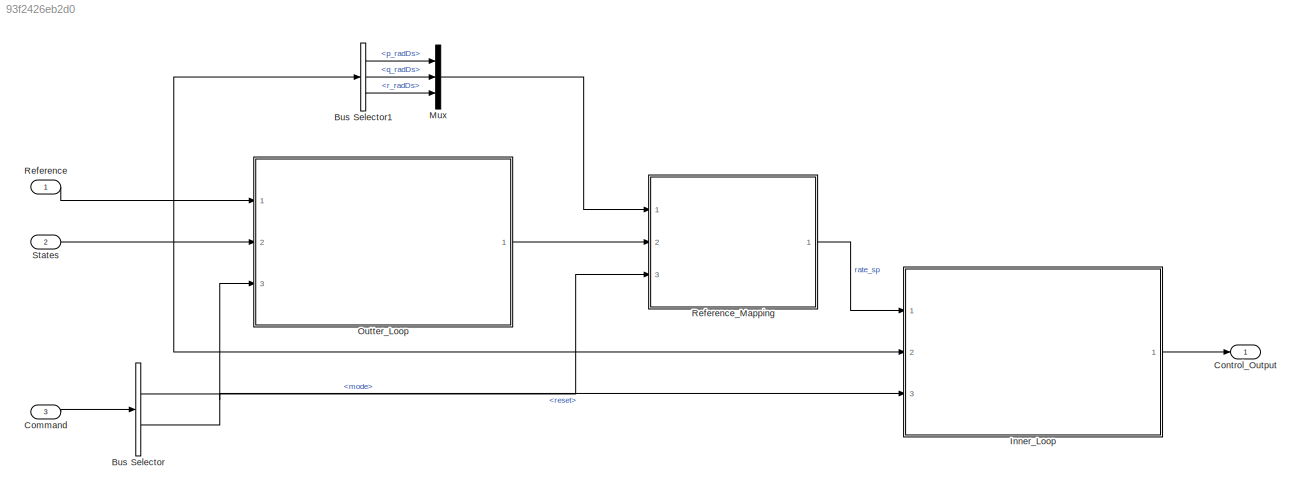
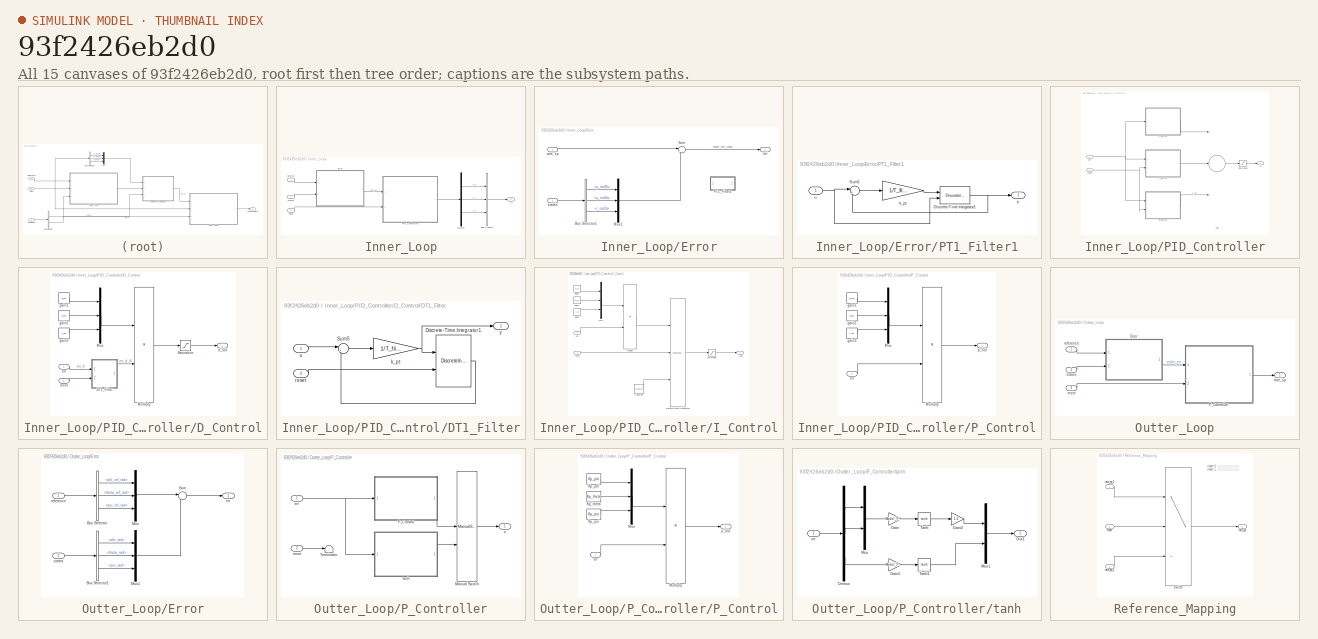
[diagram: thumbnail index - all 15 canvases of the model, root first then tree order]
MODEL slx_93f2426eb2d0
KIND model
CONFIG AbsTol = auto
CONFIG EnableMultiTasking = off
CONFIG FixedStep = auto
CONFIG MaxStep = auto
CONFIG MinStep = auto
CONFIG RelTol = 1e-3
CONFIG SampleTimeConstraint = Unconstrained
CONFIG Solver = VariableStepAuto
CONFIG SolverName = VariableStepAuto
CONFIG StartTime = 0.0
CONFIG StopTime = 10.0
BLOCK [BusSelector] Bus Selector
  OutputAsBus = off
  OutputSignals = mode,reset
  Ports = [1, 2]
BLOCK [BusSelector] Bus Selector1
  OutputAsBus = off
  OutputSignals = p_radDs,q_radDs,r_radDs
  Ports = [1, 3]
BLOCK [Inport] Command
  IconDisplay = Port number
  OutDataTypeStr = Bus: Command
  Port = 3
BLOCK [Outport] Control_Output
  IconDisplay = Port number
  OutDataTypeStr = Bus: Control_Output
BLOCK [SubSystem] Inner_Loop
  Ports = [3, 1]
  RequestExecContextInheritance = off
BLOCK [BusCreator] Inner_Loop/Bus Creator
  DisplayOption = bar
  InheritFromInputs = on
  Inputs = 3
  Ports = [3, 1]
BLOCK [Demux] Inner_Loop/Demux
  DisplayOption = bar
  Outputs = 3
  Ports = [1, 3]
BLOCK [SubSystem] Inner_Loop/Error
  Ports = [2, 1]
  RequestExecContextInheritance = off
BLOCK [BusSelector] Inner_Loop/Error/Bus Selector1
  OutputAsBus = off
  OutputSignals = p_radDs,q_radDs,r_radDs
  Ports = [1, 3]
BLOCK [Mux] Inner_Loop/Error/Mux1
  DisplayOption = bar
  Inputs = 3
  Ports = [3, 1]
BLOCK [SubSystem] Inner_Loop/Error/PT1_Filter1
  Commented = on
  Ports = [1, 1]
  RequestExecContextInheritance = off
BLOCK [DiscreteIntegrator] Inner_Loop/Error/PT1_Filter1/Discrete-Time Integrator1
  ICPrevOutput = DiscIntNeverNeededParam
  ICPrevScaledInput = DiscIntNeverNeededParam
  InitialConditionSource = external
  OutDataTypeStr = single
  Ports = [2, 1]
  SampleTime = -1
BLOCK [Sum] Inner_Loop/Error/PT1_Filter1/Sum5
  IconShape = round
  InputSameDT = off
  Inputs = |+-
  OutDataTypeStr = Inherit: Inherit via internal rule
  Ports = [2, 1]
  SaturateOnIntegerOverflow = off
BLOCK [Gain] Inner_Loop/Error/PT1_Filter1/k_pt
  Gain = 1/T_filter
  OutDataTypeStr = Inherit: Inherit via internal rule
  ParamDataTypeStr = Inherit: Inherit via internal rule
  SaturateOnIntegerOverflow = off
BLOCK [Inport] Inner_Loop/Error/PT1_Filter1/u
  IconDisplay = Port number
BLOCK [Outport] Inner_Loop/Error/PT1_Filter1/y
  IconDisplay = Port number
BLOCK [Sum] Inner_Loop/Error/Sum
  IconShape = round
  InputSameDT = off
  Inputs = |+-
  OutDataTypeStr = Inherit: Inherit via internal rule
  Ports = [2, 1]
  SaturateOnIntegerOverflow = off
BLOCK [Outport] Inner_Loop/Error/err
  IconDisplay = Port number
BLOCK [Inport] Inner_Loop/Error/rate_sp
  IconDisplay = Port number
BLOCK [Inport] Inner_Loop/Error/states
  IconDisplay = Port number
  Port = 2
BLOCK [SubSystem] Inner_Loop/PID_Controller
  Ports = [2, 1]
  RequestExecContextInheritance = off
BLOCK [Sum] Inner_Loop/PID_Controller/Add
  AccumDataTypeStr = Inherit: Same as first input
  InputSameDT = off
  Inputs = +++
  OutDataTypeStr = Inherit: Inherit via internal rule
  Ports = [3, 1]
  SaturateOnIntegerOverflow = off
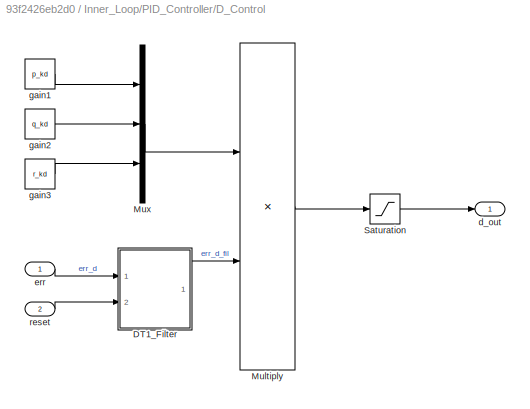
BLOCK [SubSystem] Inner_Loop/PID_Controller/D_Control
  Ports = [2, 1]
  RequestExecContextInheritance = off
BLOCK [SubSystem] Inner_Loop/PID_Controller/D_Control/DT1_Filter
  Ports = [2, 1]
  RequestExecContextInheritance = off
BLOCK [DiscreteIntegrator] Inner_Loop/PID_Controller/D_Control/DT1_Filter/Discrete-Time Integrator1
  ExternalReset = level
  ICPrevOutput = DiscIntNeverNeededParam
  ICPrevScaledInput = DiscIntNeverNeededParam
  Ports = [2, 1]
  SampleTime = -1
BLOCK [Sum] Inner_Loop/PID_Controller/D_Control/DT1_Filter/Sum5
  IconShape = round
  InputSameDT = off
  Inputs = |+-
  OutDataTypeStr = Inherit: Inherit via internal rule
  Ports = [2, 1]
  SaturateOnIntegerOverflow = off
BLOCK [Gain] Inner_Loop/PID_Controller/D_Control/DT1_Filter/k_pt
  Gain = 1/T_filter
  ParamDataTypeStr = Inherit: Inherit via internal rule
  SaturateOnIntegerOverflow = off
BLOCK [Inport] Inner_Loop/PID_Controller/D_Control/DT1_Filter/reset
  IconDisplay = Port number
  Port = 2
BLOCK [Inport] Inner_Loop/PID_Controller/D_Control/DT1_Filter/u
  IconDisplay = Port number
BLOCK [Outport] Inner_Loop/PID_Controller/D_Control/DT1_Filter/y
  IconDisplay = Port number
BLOCK [Product] Inner_Loop/PID_Controller/D_Control/Multiply
  InputSameDT = off
  Ports = [2, 1]
  RndMeth = Floor
  SaturateOnIntegerOverflow = off
BLOCK [Mux] Inner_Loop/PID_Controller/D_Control/Mux
  DisplayOption = bar
  Inputs = 3
  Ports = [3, 1]
BLOCK [Saturate] Inner_Loop/PID_Controller/D_Control/Saturation
  InputPortMap = u0
  LowerLimit = min_d
  Ports = [1, 1]
  UpperLimit = max_d
BLOCK [Outport] Inner_Loop/PID_Controller/D_Control/d_out
  IconDisplay = Port number
BLOCK [Inport] Inner_Loop/PID_Controller/D_Control/err
  IconDisplay = Port number
BLOCK [Constant] Inner_Loop/PID_Controller/D_Control/gain1
  OutDataTypeStr = single
  Value = p_kd
BLOCK [Constant] Inner_Loop/PID_Controller/D_Control/gain2
  OutDataTypeStr = single
  Value = q_kd
BLOCK [Constant] Inner_Loop/PID_Controller/D_Control/gain3
  OutDataTypeStr = single
  Value = r_kd
BLOCK [Inport] Inner_Loop/PID_Controller/D_Control/reset
  IconDisplay = Port number
  Port = 2
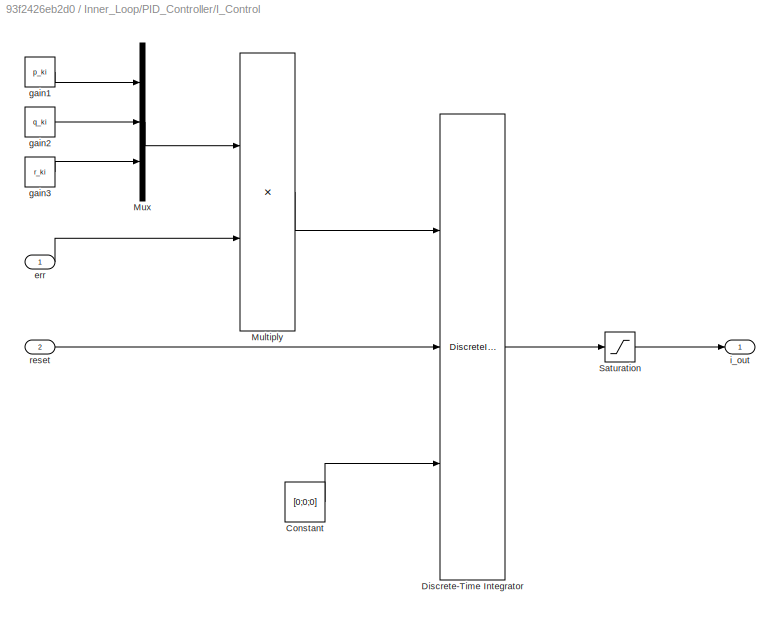
BLOCK [SubSystem] Inner_Loop/PID_Controller/I_Control
  Ports = [2, 1]
  RequestExecContextInheritance = off
BLOCK [Constant] Inner_Loop/PID_Controller/I_Control/Constant
  OutDataTypeStr = single
  Value = [0;0;0]
BLOCK [DiscreteIntegrator] Inner_Loop/PID_Controller/I_Control/Discrete-Time Integrator
  ExternalReset = level
  ICPrevOutput = DiscIntNeverNeededParam
  ICPrevScaledInput = DiscIntNeverNeededParam
  InitialConditionSetting = Auto
  InitialConditionSource = external
  Ports = [3, 1]
  SampleTime = -1
BLOCK [Product] Inner_Loop/PID_Controller/I_Control/Multiply
  InputSameDT = off
  Ports = [2, 1]
  RndMeth = Floor
  SaturateOnIntegerOverflow = off
BLOCK [Mux] Inner_Loop/PID_Controller/I_Control/Mux
  DisplayOption = bar
  Inputs = 3
  Ports = [3, 1]
BLOCK [Saturate] Inner_Loop/PID_Controller/I_Control/Saturation
  InputPortMap = u0
  LowerLimit = min_i
  Ports = [1, 1]
  UpperLimit = max_i
BLOCK [Inport] Inner_Loop/PID_Controller/I_Control/err
  IconDisplay = Port number
BLOCK [Constant] Inner_Loop/PID_Controller/I_Control/gain1
  OutDataTypeStr = single
  Value = p_ki
BLOCK [Constant] Inner_Loop/PID_Controller/I_Control/gain2
  OutDataTypeStr = single
  Value = q_ki
BLOCK [Constant] Inner_Loop/PID_Controller/I_Control/gain3
  OutDataTypeStr = single
  Value = r_ki
BLOCK [Outport] Inner_Loop/PID_Controller/I_Control/i_out
  IconDisplay = Port number
BLOCK [Inport] Inner_Loop/PID_Controller/I_Control/reset
  IconDisplay = Port number
  Port = 2
BLOCK [SubSystem] Inner_Loop/PID_Controller/P_Control
  Ports = [1, 1]
  RequestExecContextInheritance = off
BLOCK [Product] Inner_Loop/PID_Controller/P_Control/Multiply
  InputSameDT = off
  Ports = [2, 1]
  RndMeth = Floor
  SaturateOnIntegerOverflow = off
BLOCK [Mux] Inner_Loop/PID_Controller/P_Control/Mux
  DisplayOption = bar
  Inputs = 3
  Ports = [3, 1]
BLOCK [Inport] Inner_Loop/PID_Controller/P_Control/err
  IconDisplay = Port number
BLOCK [Constant] Inner_Loop/PID_Controller/P_Control/gain1
  OutDataTypeStr = single
  Value = p_kp
BLOCK [Constant] Inner_Loop/PID_Controller/P_Control/gain2
  OutDataTypeStr = single
  Value = q_kp
BLOCK [Constant] Inner_Loop/PID_Controller/P_Control/gain3
  OutDataTypeStr = single
  Value = r_kp
BLOCK [Outport] Inner_Loop/PID_Controller/P_Control/p_out
  IconDisplay = Port number
BLOCK [Saturate] Inner_Loop/PID_Controller/Saturation
  InputPortMap = u0
  LowerLimit = -1
  Ports = [1, 1]
  UpperLimit = 1
BLOCK [Inport] Inner_Loop/PID_Controller/err
  IconDisplay = Port number
BLOCK [Inport] Inner_Loop/PID_Controller/reset
  IconDisplay = Port number
  Port = 2
BLOCK [Outport] Inner_Loop/PID_Controller/u
  IconDisplay = Port number
BLOCK [Inport] Inner_Loop/rate_sp
  IconDisplay = Port number
BLOCK [Inport] Inner_Loop/reset
  IconDisplay = Port number
  Port = 3
BLOCK [Inport] Inner_Loop/states
  IconDisplay = Port number
  Port = 2
BLOCK [Outport] Inner_Loop/u
  IconDisplay = Port number
  OutDataTypeStr = Bus: Control_Output
BLOCK [Mux] Mux
  DisplayOption = bar
  Inputs = 3
  Ports = [3, 1]
BLOCK [SubSystem] Outter_Loop
  Ports = [3, 1]
  RequestExecContextInheritance = off
BLOCK [SubSystem] Outter_Loop/Error
  Ports = [2, 1]
  RequestExecContextInheritance = off
BLOCK [BusSelector] Outter_Loop/Error/Bus Selector
  OutputAsBus = off
  OutputSignals = phi_ref_rad,theta_ref_rad,psi_ref_rad
  Ports = [1, 3]
BLOCK [BusSelector] Outter_Loop/Error/Bus Selector1
  OutputAsBus = off
  OutputSignals = phi_rad,theta_rad,psi_rad
  Ports = [1, 3]
BLOCK [Mux] Outter_Loop/Error/Mux
  DisplayOption = bar
  Inputs = 3
  Ports = [3, 1]
BLOCK [Mux] Outter_Loop/Error/Mux1
  DisplayOption = bar
  Inputs = 3
  Ports = [3, 1]
BLOCK [Sum] Outter_Loop/Error/Sum
  IconShape = round
  InputSameDT = off
  Inputs = |+-
  OutDataTypeStr = Inherit: Inherit via internal rule
  Ports = [2, 1]
  SaturateOnIntegerOverflow = off
BLOCK [Outport] Outter_Loop/Error/err
  IconDisplay = Port number
BLOCK [Inport] Outter_Loop/Error/reference
  IconDisplay = Port number
BLOCK [Inport] Outter_Loop/Error/states
  IconDisplay = Port number
  Port = 2
BLOCK [SubSystem] Outter_Loop/P_Controller
  Ports = [2, 1]
  RequestExecContextInheritance = off
BLOCK [ManualSwitch] Outter_Loop/P_Controller/Manual Switch
BLOCK [SubSystem] Outter_Loop/P_Controller/P_Control
  Ports = [1, 1]
  RequestExecContextInheritance = off
BLOCK [Constant] Outter_Loop/P_Controller/P_Control/Kp_phi 
  OutDataTypeStr = single
  Value = Kp_phi
BLOCK [Constant] Outter_Loop/P_Controller/P_Control/Kp_psi
  OutDataTypeStr = single
  Value = Kp_psi
BLOCK [Constant] Outter_Loop/P_Controller/P_Control/Kp_theta
  OutDataTypeStr = single
  Value = Kp_theta
BLOCK [Product] Outter_Loop/P_Controller/P_Control/Multiply
  InputSameDT = off
  Ports = [2, 1]
  RndMeth = Floor
  SaturateOnIntegerOverflow = off
BLOCK [Mux] Outter_Loop/P_Controller/P_Control/Mux
  DisplayOption = bar
  Inputs = 3
  Ports = [3, 1]
BLOCK [Inport] Outter_Loop/P_Controller/P_Control/err
  IconDisplay = Port number
BLOCK [Outport] Outter_Loop/P_Controller/P_Control/p_out
  IconDisplay = Port number
BLOCK [Terminator] Outter_Loop/P_Controller/Terminator
BLOCK [Inport] Outter_Loop/P_Controller/err
  IconDisplay = Port number
BLOCK [Inport] Outter_Loop/P_Controller/reset
  IconDisplay = Port number
  Port = 2
BLOCK [SubSystem] Outter_Loop/P_Controller/tanh
  Ports = [1, 1]
  RequestExecContextInheritance = off
BLOCK [Demux] Outter_Loop/P_Controller/tanh/Demux
  DisplayOption = bar
  Outputs = 3
  Ports = [1, 3]
BLOCK [Gain] Outter_Loop/P_Controller/tanh/Gain
  Gain = Model_Param.Kp_phi
  OutDataTypeStr = Inherit: Inherit via internal rule
  ParamDataTypeStr = Inherit: Inherit via internal rule
  SaturateOnIntegerOverflow = off
BLOCK [Gain] Outter_Loop/P_Controller/tanh/Gain1
  Gain = Model_Param.Kp_psi
  OutDataTypeStr = Inherit: Inherit via internal rule
  ParamDataTypeStr = Inherit: Inherit via internal rule
  SaturateOnIntegerOverflow = off
BLOCK [Gain] Outter_Loop/P_Controller/tanh/Gain2
  Gain = 1.2
  OutDataTypeStr = Inherit: Inherit via internal rule
  ParamDataTypeStr = Inherit: Inherit via internal rule
  SaturateOnIntegerOverflow = off
BLOCK [Mux] Outter_Loop/P_Controller/tanh/Mux
  DisplayOption = bar
  Inputs = 2
  Ports = [2, 1]
BLOCK [Mux] Outter_Loop/P_Controller/tanh/Mux1
  DisplayOption = bar
  Inputs = 2
  Ports = [2, 1]
BLOCK [Outport] Outter_Loop/P_Controller/tanh/Out1
  IconDisplay = Port number
BLOCK [Trigonometry] Outter_Loop/P_Controller/tanh/Tanh
  Operator = tanh
  Ports = [1, 1]
BLOCK [Trigonometry] Outter_Loop/P_Controller/tanh/Tanh1
  Operator = tanh
  Ports = [1, 1]
BLOCK [Inport] Outter_Loop/P_Controller/tanh/err
  IconDisplay = Port number
BLOCK [Outport] Outter_Loop/P_Controller/u
  IconDisplay = Port number
BLOCK [Outport] Outter_Loop/rate_sp
  IconDisplay = Port number
BLOCK [Inport] Outter_Loop/reference
  IconDisplay = Port number
BLOCK [Inport] Outter_Loop/reset
  IconDisplay = Port number
  Port = 3
BLOCK [Inport] Outter_Loop/states
  IconDisplay = Port number
  Port = 2
BLOCK [Inport] Reference
  IconDisplay = Port number
  OutDataTypeStr = Bus: Reference
BLOCK [SubSystem] Reference_Mapping
  Ports = [3, 1]
  RequestExecContextInheritance = off
BLOCK [Switch] Reference_Mapping/Switch
  Criteria = u2 > Threshold
  InputSameDT = off
  SaturateOnIntegerOverflow = off
BLOCK [Inport] Reference_Mapping/mode
  IconDisplay = Port number
  Port = 3
BLOCK [Outport] Reference_Mapping/rate_sp
  IconDisplay = Port number
BLOCK [Inport] Reference_Mapping/rate_sp_1
  IconDisplay = Port number
BLOCK [Inport] Reference_Mapping/rate_sp_2
  IconDisplay = Port number
  Port = 2
BLOCK [Inport] States
  IconDisplay = Port number
  OutDataTypeStr = Bus: States
  Port = 2
ANNOTATION Reference_Mapping: mode=0, 外环输出作为目标角速度 mode=1, 输入指令作为目标角速度
LINE Bus Selector1:1 -> Mux:1
LINE Bus Selector1:2 -> Mux:2
LINE Bus Selector1:3 -> Mux:3
LINE Bus Selector:1 -> Reference_Mapping:3
NET Bus Selector:2 -> Inner_Loop:3, Outter_Loop:3
LINE Command:1 -> Bus Selector:1
LINE Inner_Loop/Bus Creator:1 -> Inner_Loop/u:1
LINE Inner_Loop/Demux:1 -> Inner_Loop/Bus Creator:1
LINE Inner_Loop/Demux:2 -> Inner_Loop/Bus Creator:2
LINE Inner_Loop/Demux:3 -> Inner_Loop/Bus Creator:3
LINE Inner_Loop/Error/Bus Selector1:1 -> Inner_Loop/Error/Mux1:1
LINE Inner_Loop/Error/Bus Selector1:2 -> Inner_Loop/Error/Mux1:2
LINE Inner_Loop/Error/Bus Selector1:3 -> Inner_Loop/Error/Mux1:3
LINE Inner_Loop/Error/Mux1:1 -> Inner_Loop/Error/Sum:2
NET Inner_Loop/Error/PT1_Filter1/Discrete-Time Integrator1:1 -> Inner_Loop/Error/PT1_Filter1/Sum5:2, Inner_Loop/Error/PT1_Filter1/y:1
LINE Inner_Loop/Error/PT1_Filter1/Sum5:1 -> Inner_Loop/Error/PT1_Filter1/k_pt:1
LINE Inner_Loop/Error/PT1_Filter1/k_pt:1 -> Inner_Loop/Error/PT1_Filter1/Discrete-Time Integrator1:1
NET Inner_Loop/Error/PT1_Filter1/u:1 -> Inner_Loop/Error/PT1_Filter1/Discrete-Time Integrator1:2, Inner_Loop/Error/PT1_Filter1/Sum5:1
LINE Inner_Loop/Error/Sum:1 -> Inner_Loop/Error/err:1
LINE Inner_Loop/Error/rate_sp:1 -> Inner_Loop/Error/Sum:1
LINE Inner_Loop/Error/states:1 -> Inner_Loop/Error/Bus Selector1:1
LINE Inner_Loop/Error:1 -> Inner_Loop/PID_Controller:1
LINE Inner_Loop/PID_Controller/Add:1 -> Inner_Loop/PID_Controller/Saturation:1
LINE Inner_Loop/PID_Controller/D_Control/DT1_Filter/Discrete-Time Integrator1:1 -> Inner_Loop/PID_Controller/D_Control/DT1_Filter/Sum5:2
LINE Inner_Loop/PID_Controller/D_Control/DT1_Filter/Sum5:1 -> Inner_Loop/PID_Controller/D_Control/DT1_Filter/k_pt:1
NET Inner_Loop/PID_Controller/D_Control/DT1_Filter/k_pt:1 -> Inner_Loop/PID_Controller/D_Control/DT1_Filter/Discrete-Time Integrator1:1, Inner_Loop/PID_Controller/D_Control/DT1_Filter/y:1
LINE Inner_Loop/PID_Controller/D_Control/DT1_Filter/reset:1 -> Inner_Loop/PID_Controller/D_Control/DT1_Filter/Discrete-Time Integrator1:2
LINE Inner_Loop/PID_Controller/D_Control/DT1_Filter/u:1 -> Inner_Loop/PID_Controller/D_Control/DT1_Filter/Sum5:1
LINE Inner_Loop/PID_Controller/D_Control/DT1_Filter:1 -> Inner_Loop/PID_Controller/D_Control/Multiply:2
LINE Inner_Loop/PID_Controller/D_Control/Multiply:1 -> Inner_Loop/PID_Controller/D_Control/Saturation:1
LINE Inner_Loop/PID_Controller/D_Control/Mux:1 -> Inner_Loop/PID_Controller/D_Control/Multiply:1
LINE Inner_Loop/PID_Controller/D_Control/Saturation:1 -> Inner_Loop/PID_Controller/D_Control/d_out:1
LINE Inner_Loop/PID_Controller/D_Control/err:1 -> Inner_Loop/PID_Controller/D_Control/DT1_Filter:1
LINE Inner_Loop/PID_Controller/D_Control/gain1:1 -> Inner_Loop/PID_Controller/D_Control/Mux:1
LINE Inner_Loop/PID_Controller/D_Control/gain2:1 -> Inner_Loop/PID_Controller/D_Control/Mux:2
LINE Inner_Loop/PID_Controller/D_Control/gain3:1 -> Inner_Loop/PID_Controller/D_Control/Mux:3
LINE Inner_Loop/PID_Controller/D_Control/reset:1 -> Inner_Loop/PID_Controller/D_Control/DT1_Filter:2
LINE Inner_Loop/PID_Controller/D_Control:1 -> Inner_Loop/PID_Controller/Add:3
LINE Inner_Loop/PID_Controller/I_Control/Constant:1 -> Inner_Loop/PID_Controller/I_Control/Discrete-Time Integrator:3
LINE Inner_Loop/PID_Controller/I_Control/Discrete-Time Integrator:1 -> Inner_Loop/PID_Controller/I_Control/Saturation:1
LINE Inner_Loop/PID_Controller/I_Control/Multiply:1 -> Inner_Loop/PID_Controller/I_Control/Discrete-Time Integrator:1
LINE Inner_Loop/PID_Controller/I_Control/Mux:1 -> Inner_Loop/PID_Controller/I_Control/Multiply:1
LINE Inner_Loop/PID_Controller/I_Control/Saturation:1 -> Inner_Loop/PID_Controller/I_Control/i_out:1
LINE Inner_Loop/PID_Controller/I_Control/err:1 -> Inner_Loop/PID_Controller/I_Control/Multiply:2
LINE Inner_Loop/PID_Controller/I_Control/gain1:1 -> Inner_Loop/PID_Controller/I_Control/Mux:1
LINE Inner_Loop/PID_Controller/I_Control/gain2:1 -> Inner_Loop/PID_Controller/I_Control/Mux:2
LINE Inner_Loop/PID_Controller/I_Control/gain3:1 -> Inner_Loop/PID_Controller/I_Control/Mux:3
LINE Inner_Loop/PID_Controller/I_Control/reset:1 -> Inner_Loop/PID_Controller/I_Control/Discrete-Time Integrator:2
LINE Inner_Loop/PID_Controller/I_Control:1 -> Inner_Loop/PID_Controller/Add:2
LINE Inner_Loop/PID_Controller/P_Control/Multiply:1 -> Inner_Loop/PID_Controller/P_Control/p_out:1
LINE Inner_Loop/PID_Controller/P_Control/Mux:1 -> Inner_Loop/PID_Controller/P_Control/Multiply:1
LINE Inner_Loop/PID_Controller/P_Control/err:1 -> Inner_Loop/PID_Controller/P_Control/Multiply:2
LINE Inner_Loop/PID_Controller/P_Control/gain1:1 -> Inner_Loop/PID_Controller/P_Control/Mux:1
LINE Inner_Loop/PID_Controller/P_Control/gain2:1 -> Inner_Loop/PID_Controller/P_Control/Mux:2
LINE Inner_Loop/PID_Controller/P_Control/gain3:1 -> Inner_Loop/PID_Controller/P_Control/Mux:3
LINE Inner_Loop/PID_Controller/P_Control:1 -> Inner_Loop/PID_Controller/Add:1
LINE Inner_Loop/PID_Controller/Saturation:1 -> Inner_Loop/PID_Controller/u:1
NET Inner_Loop/PID_Controller/err:1 -> Inner_Loop/PID_Controller/D_Control:1, Inner_Loop/PID_Controller/I_Control:1, Inner_Loop/PID_Controller/P_Control:1
NET Inner_Loop/PID_Controller/reset:1 -> Inner_Loop/PID_Controller/D_Control:2, Inner_Loop/PID_Controller/I_Control:2
LINE Inner_Loop/PID_Controller:1 -> Inner_Loop/Demux:1
LINE Inner_Loop/rate_sp:1 -> Inner_Loop/Error:1
LINE Inner_Loop/reset:1 -> Inner_Loop/PID_Controller:2
LINE Inner_Loop/states:1 -> Inner_Loop/Error:2
LINE Inner_Loop:1 -> Control_Output:1
LINE Mux:1 -> Reference_Mapping:1
LINE Outter_Loop/Error/Bus Selector1:1 -> Outter_Loop/Error/Mux1:1
LINE Outter_Loop/Error/Bus Selector1:2 -> Outter_Loop/Error/Mux1:2
LINE Outter_Loop/Error/Bus Selector1:3 -> Outter_Loop/Error/Mux1:3
LINE Outter_Loop/Error/Bus Selector:1 -> Outter_Loop/Error/Mux:1
LINE Outter_Loop/Error/Bus Selector:2 -> Outter_Loop/Error/Mux:2
LINE Outter_Loop/Error/Bus Selector:3 -> Outter_Loop/Error/Mux:3
LINE Outter_Loop/Error/Mux1:1 -> Outter_Loop/Error/Sum:2
LINE Outter_Loop/Error/Mux:1 -> Outter_Loop/Error/Sum:1
LINE Outter_Loop/Error/Sum:1 -> Outter_Loop/Error/err:1
LINE Outter_Loop/Error/reference:1 -> Outter_Loop/Error/Bus Selector:1
LINE Outter_Loop/Error/states:1 -> Outter_Loop/Error/Bus Selector1:1
LINE Outter_Loop/Error:1 -> Outter_Loop/P_Controller:1
LINE Outter_Loop/P_Controller/Manual Switch:1 -> Outter_Loop/P_Controller/u:1
LINE Outter_Loop/P_Controller/P_Control/Kp_phi :1 -> Outter_Loop/P_Controller/P_Control/Mux:1
LINE Outter_Loop/P_Controller/P_Control/Kp_psi:1 -> Outter_Loop/P_Controller/P_Control/Mux:3
LINE Outter_Loop/P_Controller/P_Control/Kp_theta:1 -> Outter_Loop/P_Controller/P_Control/Mux:2
LINE Outter_Loop/P_Controller/P_Control/Multiply:1 -> Outter_Loop/P_Controller/P_Control/p_out:1
LINE Outter_Loop/P_Controller/P_Control/Mux:1 -> Outter_Loop/P_Controller/P_Control/Multiply:1
LINE Outter_Loop/P_Controller/P_Control/err:1 -> Outter_Loop/P_Controller/P_Control/Multiply:2
LINE Outter_Loop/P_Controller/P_Control:1 -> Outter_Loop/P_Controller/Manual Switch:1
NET Outter_Loop/P_Controller/err:1 -> Outter_Loop/P_Controller/P_Control:1, Outter_Loop/P_Controller/tanh:1
LINE Outter_Loop/P_Controller/reset:1 -> Outter_Loop/P_Controller/Terminator:1
LINE Outter_Loop/P_Controller/tanh/Demux:1 -> Outter_Loop/P_Controller/tanh/Mux:1
LINE Outter_Loop/P_Controller/tanh/Demux:2 -> Outter_Loop/P_Controller/tanh/Mux:2
LINE Outter_Loop/P_Controller/tanh/Demux:3 -> Outter_Loop/P_Controller/tanh/Gain1:1
LINE Outter_Loop/P_Controller/tanh/Gain1:1 -> Outter_Loop/P_Controller/tanh/Tanh1:1
LINE Outter_Loop/P_Controller/tanh/Gain2:1 -> Outter_Loop/P_Controller/tanh/Mux1:1
LINE Outter_Loop/P_Controller/tanh/Gain:1 -> Outter_Loop/P_Controller/tanh/Tanh:1
LINE Outter_Loop/P_Controller/tanh/Mux1:1 -> Outter_Loop/P_Controller/tanh/Out1:1
LINE Outter_Loop/P_Controller/tanh/Mux:1 -> Outter_Loop/P_Controller/tanh/Gain:1
LINE Outter_Loop/P_Controller/tanh/Tanh1:1 -> Outter_Loop/P_Controller/tanh/Mux1:2
LINE Outter_Loop/P_Controller/tanh/Tanh:1 -> Outter_Loop/P_Controller/tanh/Gain2:1
LINE Outter_Loop/P_Controller/tanh/err:1 -> Outter_Loop/P_Controller/tanh/Demux:1
LINE Outter_Loop/P_Controller/tanh:1 -> Outter_Loop/P_Controller/Manual Switch:2
LINE Outter_Loop/P_Controller:1 -> Outter_Loop/rate_sp:1
LINE Outter_Loop/reference:1 -> Outter_Loop/Error:1
LINE Outter_Loop/reset:1 -> Outter_Loop/P_Controller:2
LINE Outter_Loop/states:1 -> Outter_Loop/Error:2
LINE Outter_Loop:1 -> Reference_Mapping:2
LINE Reference:1 -> Outter_Loop:1
LINE Reference_Mapping/Switch:1 -> Reference_Mapping/rate_sp:1
LINE Reference_Mapping/mode:1 -> Reference_Mapping/Switch:2
LINE Reference_Mapping/rate_sp_1:1 -> Reference_Mapping/Switch:1
LINE Reference_Mapping/rate_sp_2:1 -> Reference_Mapping/Switch:3
LINE Reference_Mapping:1 -> Inner_Loop:1
NET States:1 -> Bus Selector1:1, Inner_Loop:2, Outter_Loop:2
note: NET lines group one-source signal fan-out (src -> all destinations, sorted); 1:1 wires keep LINE
